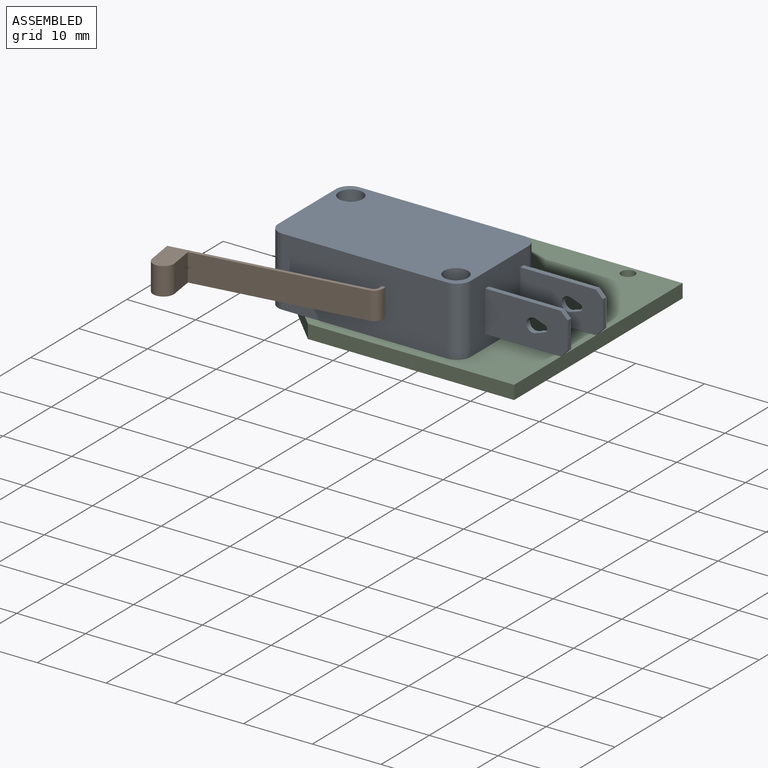
[diagram: assembled view]
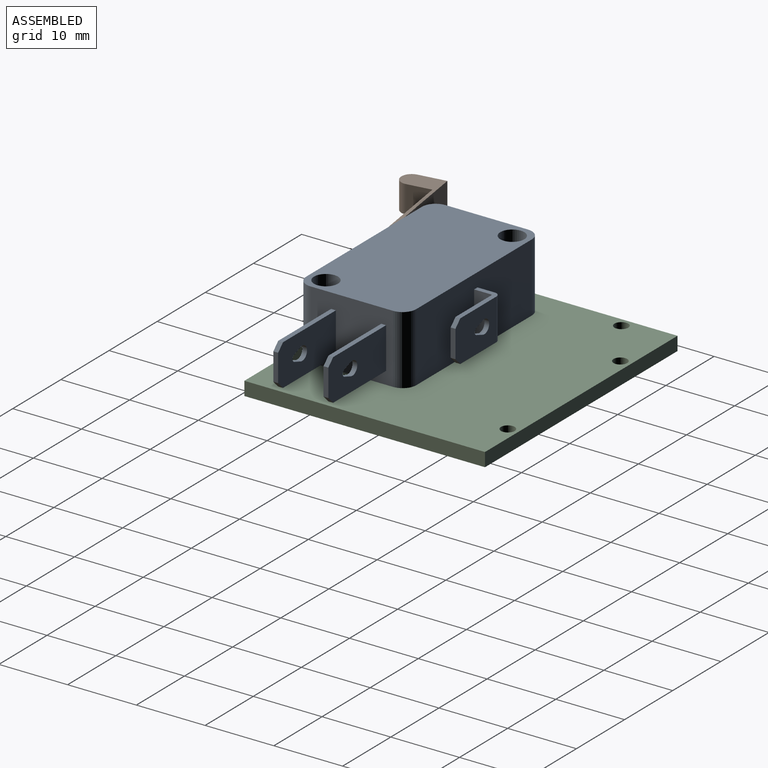
[diagram: assembled view, second angle]
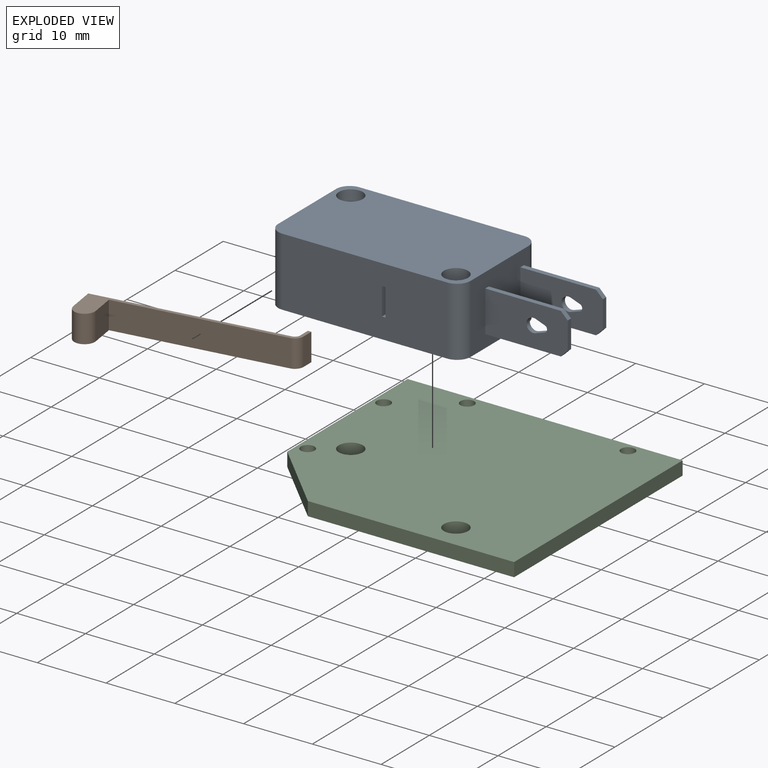
[diagram: exploded view]
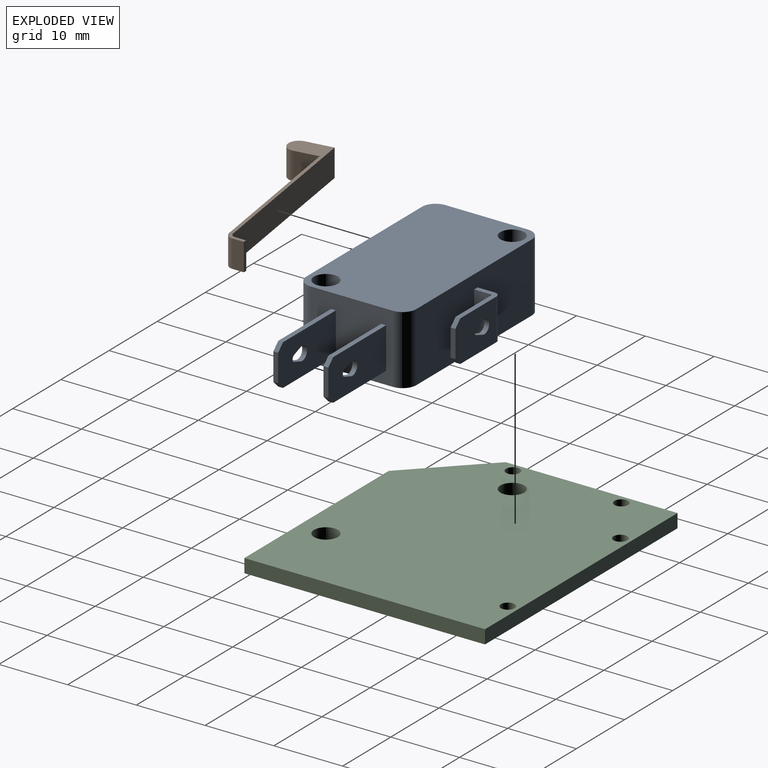
[diagram: exploded view, second angle]
ASSEMBLY  parts=3 mates=2
PART A: 54 faces, bbox 40x19.3x10 mm
  f0: plane 12x6mm, normal (0,-1,0), area 66.7mm2, adj f4,f16,f17,f18,f24,f25,f30,f31
  f1: plane 12x6mm, normal (0,1,0), area 66.7mm2, adj f4,f16,f17,f18,f24,f25,f30,f31
  f2: plane 12x6mm, normal (0,-1,0), area 66.7mm2, adj f4,f19,f20,f21,f22,f23,f26,f27
  f3: plane 12x6mm, normal (0,1,0), area 66.7mm2, adj f4,f19,f20,f21,f22,f23,f26,f27
  f4: plane 12x10mm, normal (1,0,0), area 111.6mm2, adj f0,f1,f2,f3,f7,f8,f14,f15
  f5: cylinder r=2mm len=10mm, axis (0,0,-1), area 31.4mm2, adj f6,f13,f14,f15
  f6: plane 24x10mm, normal (0,-1,0), area 238mm2, adj f5,f7,f14,f15,f49,f50,f51,f52
  f7: cylinder r=2mm len=10mm, axis (0,0,-1), area 31.4mm2, adj f4,f6,f14,f15
  f8: cylinder r=2mm len=10mm, axis (0,0,-1), area 31.4mm2, adj f4,f9,f14,f15
  f9: plane 24x10mm, normal (0,1,0), area 235.8mm2, adj f8,f10,f14,f15,f35,f36,f37,f38
  f10: cylinder r=2mm len=10mm, axis (0,0,-1), area 31.4mm2, adj f9,f13,f14,f15
  f11: cylinder r=1.75mm len=10mm, axis (0,0,-1), area 110mm2, adj f14,f15
  f12: cylinder r=1.75mm len=10mm, axis (0,0,-1), area 110mm2, adj f14,f15
  f13: plane 12x10mm, normal (-1,0,0), area 120mm2, adj f5,f10,f14,f15
  f14: plane 28x16mm, normal (0,0,1), area 425.3mm2, adj f4,f5,f6,f7,f8,f9,f10,f11
  f15: plane 28x16mm, normal (0,0,-1), area 425.3mm2, adj f4,f5,f6,f7,f8,f9,f10,f11
  f16: plane 11x0.7mm, normal (0,0,-1), area 7.7mm2, adj f0,f1,f4,f24
  f17: plane 11x0.7mm, normal (0,0,1), area 7.7mm2, adj f0,f1,f4,f25
  f18: plane 4x0.7mm, normal (1,0,0), area 2.8mm2, adj f0,f1,f24,f25
  f19: plane 11x0.7mm, normal (0,0,-1), area 7.7mm2, adj f2,f3,f4,f23
  f20: plane 11x0.7mm, normal (0,0,1), area 7.7mm2, adj f2,f3,f4,f22
  f21: plane 4x0.7mm, normal (1,0,0), area 2.8mm2, adj f2,f3,f22,f23
  f22: plane 1x1mm, normal (0.71,0,0.71), area 1mm2, adj f2,f3,f20,f21
  f23: plane 1x1mm, normal (0.71,0,-0.71), area 1mm2, adj f2,f3,f19,f21
  f24: plane 1x1mm, normal (0.71,0,-0.71), area 1mm2, adj f0,f1,f16,f18
  f25: plane 1x1mm, normal (0.71,0,0.71), area 1mm2, adj f0,f1,f17,f18
  f26: cylinder r=1mm len=2mm, axis (0,-1,0), area 2.7mm2, adj f2,f3,f27,f29
  f27: plane 1.32x0.7mm, normal (-0.35,0,-0.94), area 1mm2, adj f2,f3,f26,f28
  f28: cylinder r=0.5mm len=0.94mm, axis (0,-1,0), area 0.9mm2, adj f2,f3,f27,f29
  f29: plane 1.35x0.7mm, normal (-0.32,0,0.95), area 1mm2, adj f2,f3,f26,f28
  f30: plane 1.35x0.7mm, normal (-0.32,0,0.95), area 1mm2, adj f0,f1,f31,f33
  f31: cylinder r=0.5mm len=0.94mm, axis (0,-1,0), area 0.9mm2, adj f0,f1,f30,f32
  f32: plane 1.32x0.7mm, normal (-0.35,0,-0.94), area 1mm2, adj f0,f1,f31,f33
  f33: cylinder r=1mm len=2mm, axis (0,-1,0), area 2.7mm2, adj f0,f1,f30,f32
  f34: plane 4x0.7mm, normal (1,0,0), area 2.8mm2, adj f41,f42,f43,f44
  f35: plane 6x2.5mm, normal (1,0,0), area 15mm2, adj f9,f36,f38,f39
  f36: plane 8.33x3.33mm, normal (0,0,-1), area 7.5mm2, adj f9,f35,f37,f39,f40,f41,f42,f43
  f37: plane 6x2.5mm, normal (-1,0,0), area 15mm2, adj f9,f36,f38,f40
  f38: plane 8.33x3.33mm, normal (0,0,1), area 7.5mm2, adj f9,f35,f37,f39,f40,f41,f42,f44
  f39: cylinder r=0.13mm len=6mm, axis (0,0,-1), area 1.2mm2, adj f35,f36,f38,f41
  f40: cylinder r=0.83mm len=6mm, axis (0,0,-1), area 7.8mm2, adj f36,f37,f38,f42
  f41: plane 8.5x6mm, normal (0,-1,0), area 45.7mm2, adj f34,f36,f38,f39,f43,f44,f45,f46
  f42: plane 8.5x6mm, normal (0,1,0), area 45.7mm2, adj f34,f36,f38,f40,f43,f44,f45,f46
  f43: plane 1x1mm, normal (0.71,0,-0.71), area 1mm2, adj f34,f36,f41,f42
  f44: plane 1x1mm, normal (0.71,0,0.71), area 1mm2, adj f34,f38,f41,f42
  f45: cylinder r=0.5mm len=0.94mm, axis (0,1,0), area 0.9mm2, adj f41,f42,f46,f47
  f46: plane 1.33x0.7mm, normal (-0.34,0,-0.94), area 1mm2, adj f41,f42,f45,f48
  f47: plane 1.31x0.7mm, normal (-0.33,0,0.94), area 1mm2, adj f41,f42,f45,f48
  f48: cylinder r=1mm len=2mm, axis (0,1,0), area 2.7mm2, adj f41,f42,f46,f47
  f49: plane 4x1mm, normal (1,0,0), area 4mm2, adj f6,f50,f52,f53
  f50: plane 1x0.5mm, normal (0,0,1), area 0.5mm2, adj f6,f49,f51,f53
  f51: plane 4x1mm, normal (-1,0,0), area 4mm2, adj f6,f50,f52,f53
  f52: plane 1x0.5mm, normal (0,0,-1), area 0.5mm2, adj f6,f49,f51,f53
  f53: plane 4x0.5mm, normal (0,-1,0), area 2mm2, adj f49,f50,f51,f52
PART B: 12 faces, bbox 28x11.6x4 mm
  f0: plane 4x0.5mm, normal (0,1,0), area 2mm2, adj f2,f3,f4,f5
  f1: plane 4x3.96mm, normal (-0.99,-0.15,0), area 16mm2, adj f3,f5,f8,f11
  f2: plane 4x1.64mm, normal (-1,0,0), area 6.6mm2, adj f0,f3,f5,f6
  f3: plane 27.98x11.62mm, normal (0,0,-1), area 29.1mm2, adj f0,f1,f2,f4,f6,f7,f8,f9
  f4: plane 4x1.64mm, normal (1,0,0), area 6.6mm2, adj f0,f3,f5,f7
  f5: plane 27.98x11.62mm, normal (0,0,1), area 29.1mm2, adj f0,f1,f2,f4,f6,f7,f8,f9
  f6: cylinder r=0.75mm len=4mm, axis (0,0,-1), area 4.3mm2, adj f2,f3,f5,f8
  f7: cylinder r=1.25mm len=4mm, axis (0,0,-1), area 7.1mm2, adj f3,f4,f5,f9
  f8: plane 26.84x4.01mm, normal (-0.15,0.99,0), area 108.6mm2, adj f1,f3,f5,f6
  f9: plane 23.87x4mm, normal (0.15,-0.99,0), area 96.6mm2, adj f3,f5,f7,f10
  f10: plane 4x3.46mm, normal (0.99,0.15,0), area 14mm2, adj f3,f5,f9,f11
  f11: cylinder r=1.5mm len=4mm, axis (0,0,1), area 18.8mm2, adj f1,f3,f5,f10
PART C: 13 faces, bbox 40x35x2 mm
  f0: plane 30x2mm, normal (0,-1,0), area 60mm2, adj f1,f9,f11,f12
  f1: plane 10x10mm, normal (-0.71,-0.71,0), area 28.3mm2, adj f0,f2,f11,f12
  f2: plane 25x2mm, normal (-1,0,0), area 50mm2, adj f1,f3,f11,f12
  f3: plane 40x2mm, normal (0,1,0), area 80mm2, adj f2,f9,f11,f12
  f4: cylinder r=1.75mm len=3.5mm, axis (0,0,1), area 22mm2, adj f11,f12
  f5: cylinder r=1mm len=2mm, axis (0,0,1), area 12.6mm2, adj f11,f12
  f6: cylinder r=1mm len=2mm, axis (0,0,1), area 12.6mm2, adj f11,f12
  f7: cylinder r=1mm len=2mm, axis (0,0,1), area 12.6mm2, adj f11,f12
  f8: cylinder r=1mm len=2mm, axis (0,0,1), area 12.6mm2, adj f11,f12
  f9: plane 35x2mm, normal (1,0,0), area 70mm2, adj f0,f3,f11,f12
  f10: cylinder r=1.75mm len=3.5mm, axis (0,0,1), area 22mm2, adj f11,f12
  f11: plane 40x35mm, normal (0,0,-1), area 1318.2mm2, adj f0,f1,f2,f3,f4,f5,f6,f7
  f12: plane 40x35mm, normal (0,0,1), area 1318.2mm2, adj f0,f1,f2,f3,f4,f5,f6,f7
PLACE A t=(-12.76,7.99,-7.86)mm
PLACE B t=(-12.76,7.99,-7.86)mm
PLACE C t=(-12.76,7.99,-7.86)mm
MATE fastened C.f4 <-> A.f11  axis (0,0,1) through (-10.26,5.49,-7.86)mm
MATE fastened A.f53 <-> B.f0  axis (0,-1,0) through (3.99,-7.01,-2.86)mm
